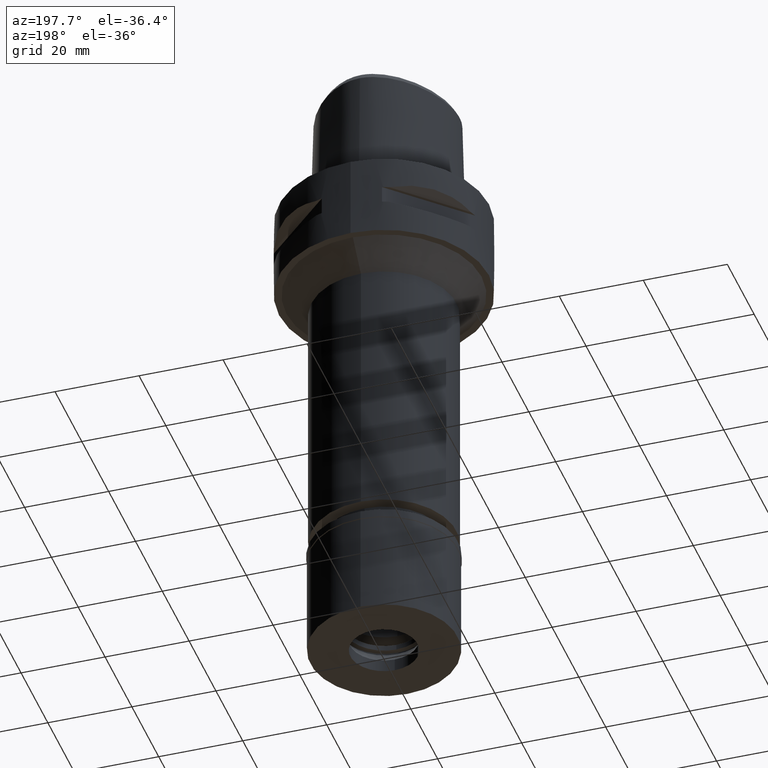
[diagram: clean part render]
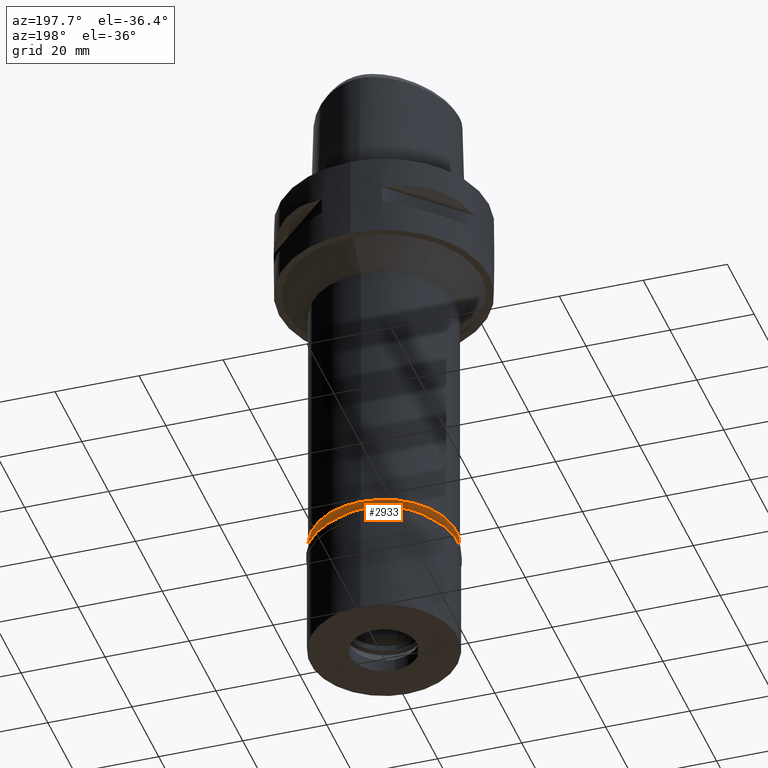
[diagram: same view with one face highlighted and labeled with its STEP entity id]
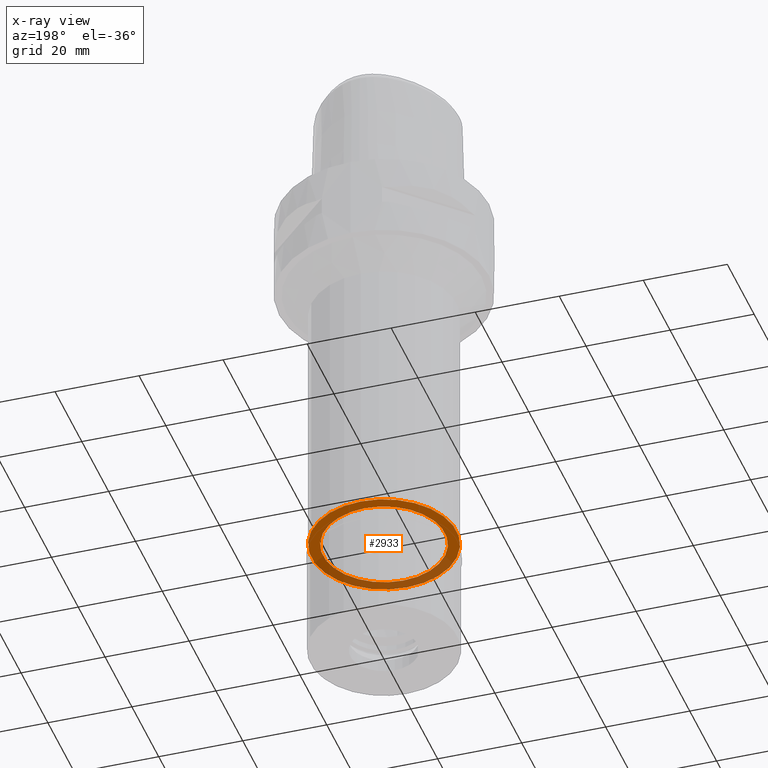
[diagram: x-ray of the same camera — body ghosted, the highlighted face saturated]
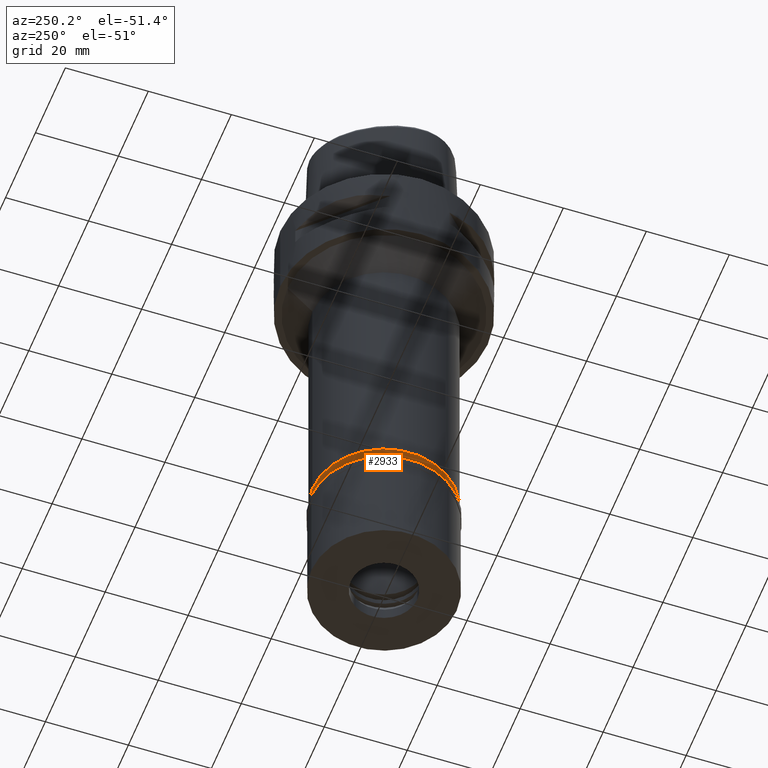
[diagram: same view with one face highlighted and labeled with its STEP entity id]
A machine part, auxiliary view. The second image highlights one B-rep face of the part: STEP entity #2933.
The next image is the same camera in x-ray: the body ghosted, the highlighted face saturated — about 38% of this face is hidden behind the body in this view.
A second angle (auxiliary view) of the same face is appended — the face is thin or edge-on in the first view.
In plain terms, the highlighted planar face has unit normal (0, 0, -1).
Its self-contained STEP definition (entity closure, byte-faithful):
#49 = DIRECTION ( 'NONE',  ( 0.0000000000000000000, 0.0000000000000000000, 1.000000000000000000 ) ) ;
#91 = FACE_OUTER_BOUND ( 'NONE', #200, .T. ) ;
#200 = EDGE_LOOP ( 'NONE', ( #1862, #3074 ) ) ;
#216 = CIRCLE ( 'NONE', #1137, 17.25000000000000000 ) ;
#338 = CARTESIAN_POINT ( 'NONE',  ( 0.0000000000000000000, 1.291390049700999962E-14, -90.20000000000000284 ) ) ;
#356 = EDGE_CURVE ( 'NONE', #4832, #4631, #216, .T. ) ;
#409 = CARTESIAN_POINT ( 'NONE',  ( 0.0000000000000000000, 14.50000000000000000, -90.20000000000000284 ) ) ;
#446 = DIRECTION ( 'NONE',  ( 0.0000000000000000000, 0.0000000000000000000, -1.000000000000000000 ) ) ;
#517 = CIRCLE ( 'NONE', #1700, 17.25000000000000000 ) ;
#900 = CIRCLE ( 'NONE', #1287, 14.50000000000000000 ) ;
#1092 = EDGE_CURVE ( 'NONE', #4096, #4823, #900, .T. ) ;
#1137 = AXIS2_PLACEMENT_3D ( 'NONE', #338, #2928, #2950 ) ;
#1185 = EDGE_CURVE ( 'NONE', #4823, #4096, #1615, .T. ) ;
#1274 = CARTESIAN_POINT ( 'NONE',  ( 0.0000000000000000000, 17.25000000000000000, -90.20000000000000284 ) ) ;
#1287 = AXIS2_PLACEMENT_3D ( 'NONE', #3615, #3245, #4039 ) ;
#1368 = AXIS2_PLACEMENT_3D ( 'NONE', #1816, #3323, #1523 ) ;
#1452 = EDGE_CURVE ( 'NONE', #4631, #4832, #517, .T. ) ;
#1523 = DIRECTION ( 'NONE',  ( 0.0000000000000000000, 1.000000000000000000, 0.0000000000000000000 ) ) ;
#1615 = CIRCLE ( 'NONE', #1368, 14.50000000000000000 ) ;
#1700 = AXIS2_PLACEMENT_3D ( 'NONE', #3478, #49, #4162 ) ;
#1728 = DIRECTION ( 'NONE',  ( 0.0000000000000000000, -1.000000000000000000, 0.0000000000000000000 ) ) ;
#1816 = CARTESIAN_POINT ( 'NONE',  ( 0.0000000000000000000, 1.291390049700999962E-14, -90.20000000000000284 ) ) ;
#1862 = ORIENTED_EDGE ( 'NONE', *, *, #1452, .F. ) ;
#2156 = CARTESIAN_POINT ( 'NONE',  ( 0.0000000000000000000, -14.50000000000000000, -90.20000000000000284 ) ) ;
#2215 = AXIS2_PLACEMENT_3D ( 'NONE', #4337, #446, #1728 ) ;
#2928 = DIRECTION ( 'NONE',  ( 0.0000000000000000000, 0.0000000000000000000, 1.000000000000000000 ) ) ;
#2933 = ADVANCED_FACE ( 'NONE', ( #91, #3446 ), #3101, .T. ) ;
#2950 = DIRECTION ( 'NONE',  ( 0.0000000000000000000, -1.000000000000000000, 0.0000000000000000000 ) ) ;
#3074 = ORIENTED_EDGE ( 'NONE', *, *, #356, .F. ) ;
#3101 = PLANE ( 'NONE',  #2215 ) ;
#3245 = DIRECTION ( 'NONE',  ( 0.0000000000000000000, 0.0000000000000000000, -1.000000000000000000 ) ) ;
#3323 = DIRECTION ( 'NONE',  ( 0.0000000000000000000, 0.0000000000000000000, -1.000000000000000000 ) ) ;
#3402 = CARTESIAN_POINT ( 'NONE',  ( 0.0000000000000000000, -17.25000000000000000, -90.20000000000000284 ) ) ;
#3446 = FACE_BOUND ( 'NONE', #4538, .T. ) ;
#3478 = CARTESIAN_POINT ( 'NONE',  ( 0.0000000000000000000, 1.291390049700999962E-14, -90.20000000000000284 ) ) ;
#3539 = ORIENTED_EDGE ( 'NONE', *, *, #1185, .F. ) ;
#3615 = CARTESIAN_POINT ( 'NONE',  ( 0.0000000000000000000, 1.291390049700999962E-14, -90.20000000000000284 ) ) ;
#4039 = DIRECTION ( 'NONE',  ( 0.0000000000000000000, -1.000000000000000000, 0.0000000000000000000 ) ) ;
#4096 = VERTEX_POINT ( 'NONE', #2156 ) ;
#4148 = ORIENTED_EDGE ( 'NONE', *, *, #1092, .F. ) ;
#4162 = DIRECTION ( 'NONE',  ( 0.0000000000000000000, 1.000000000000000000, 0.0000000000000000000 ) ) ;
#4337 = CARTESIAN_POINT ( 'NONE',  ( 0.0000000000000000000, 0.0000000000000000000, -90.20000000000000284 ) ) ;
#4538 = EDGE_LOOP ( 'NONE', ( #3539, #4148 ) ) ;
#4631 = VERTEX_POINT ( 'NONE', #1274 ) ;
#4823 = VERTEX_POINT ( 'NONE', #409 ) ;
#4832 = VERTEX_POINT ( 'NONE', #3402 ) ;